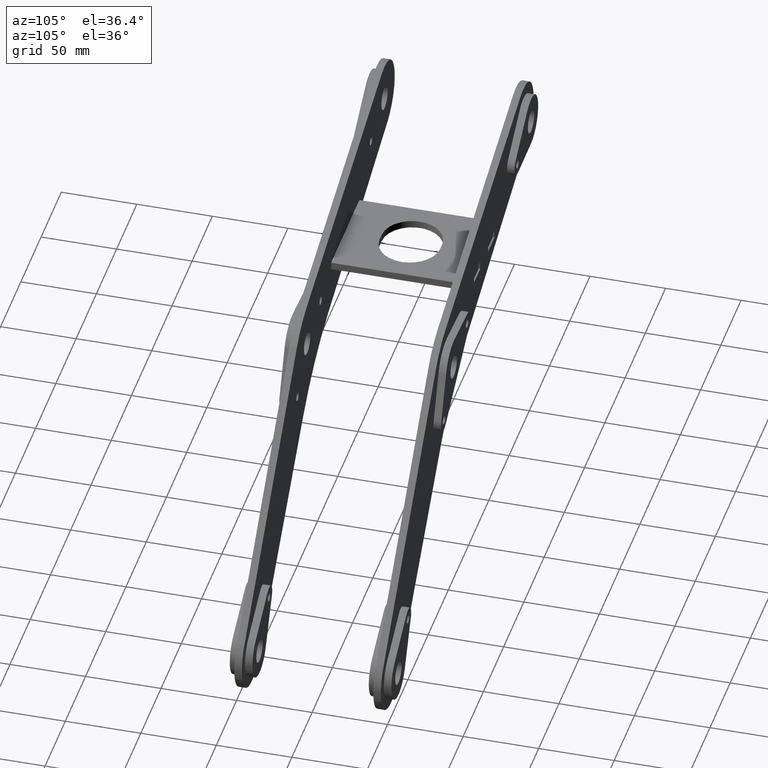
[diagram: clean part render]
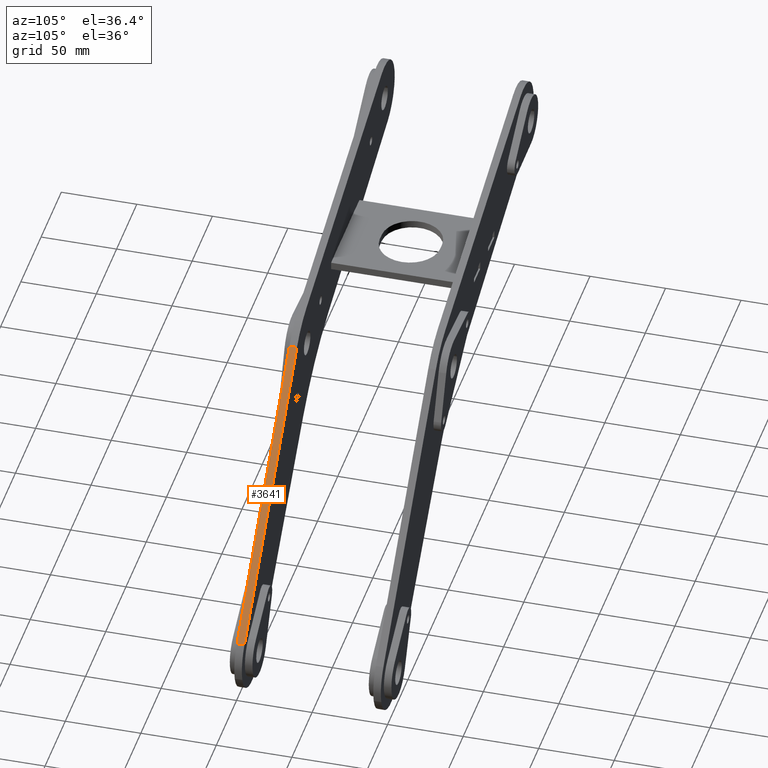
[diagram: same view with one face highlighted and labeled with its STEP entity id]
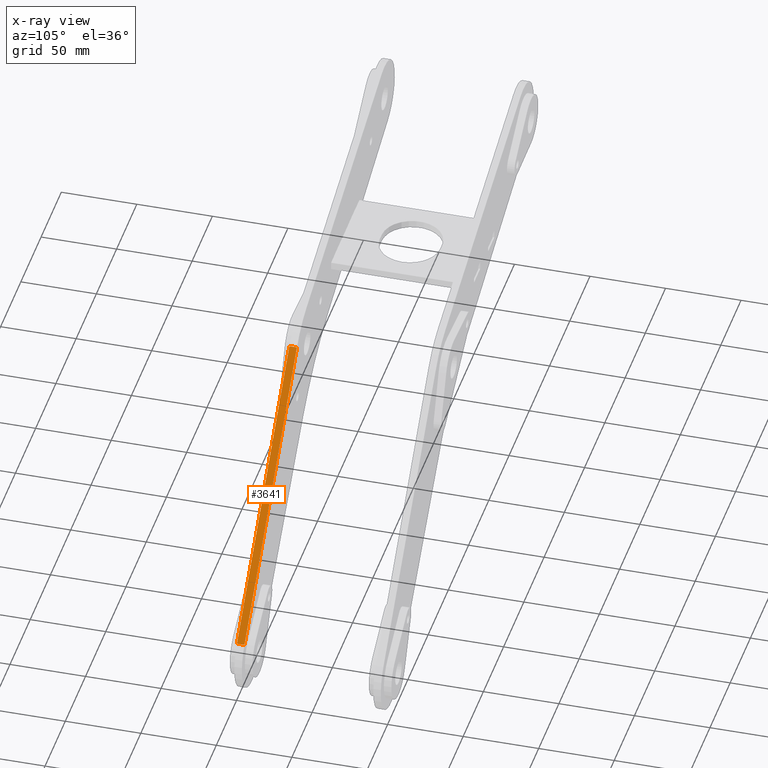
[diagram: x-ray of the same camera — body ghosted, the highlighted face saturated]
A machine part, auxiliary view. The second image highlights one B-rep face of the part: STEP entity #3641.
The next image is the same camera in x-ray: the body ghosted, the highlighted face saturated — about 0% of this face is hidden behind the body in this view.
In plain terms, the highlighted planar face has unit normal (0.7431, -0, 0.6691).
Its self-contained STEP definition (entity closure, byte-faithful):
#9 = CARTESIAN_POINT ( 'NONE',  ( 186.0810326296388553, -78.57081748244732466, 0.000000000000000000 ) ) ;
#61 = EDGE_CURVE ( 'NONE', #3784, #1043, #201, .T. ) ;
#138 = FACE_OUTER_BOUND ( 'NONE', #3619, .T. ) ;
#159 = PLANE ( 'NONE',  #1986 ) ;
#191 = CARTESIAN_POINT ( 'NONE',  ( 19.96048074662445160, 21.24448015517938160, 0.000000000000000000 ) ) ;
#201 = LINE ( 'NONE', #1117, #2864 ) ;
#235 = CARTESIAN_POINT ( 'NONE',  ( 186.0810326296388553, -78.57081748244732466, -5.000000000000000000 ) ) ;
#440 = LINE ( 'NONE', #2565, #694 ) ;
#484 = DIRECTION ( 'NONE',  ( 0.000000000000000000, 0.000000000000000000, 1.000000000000000000 ) ) ;
#514 = EDGE_CURVE ( 'NONE', #2745, #3263, #2265, .T. ) ;
#661 = DIRECTION ( 'NONE',  ( -0.8571673007021152202, 0.5150380749100493816, 0.000000000000000000 ) ) ;
#694 = VECTOR ( 'NONE', #1904, 1000.000000000000114 ) ;
#777 = ORIENTED_EDGE ( 'NONE', *, *, #61, .T. ) ;
#789 = DIRECTION ( 'NONE',  ( -0.8571673007021152202, 0.5150380749100493816, 0.000000000000000000 ) ) ;
#1043 = VERTEX_POINT ( 'NONE', #191 ) ;
#1101 = ORIENTED_EDGE ( 'NONE', *, *, #3132, .T. ) ;
#1117 = CARTESIAN_POINT ( 'NONE',  ( 19.96048074662445160, 21.24448015517938160, -5.000000000000000000 ) ) ;
#1293 = VECTOR ( 'NONE', #484, 1000.000000000000000 ) ;
#1384 = DIRECTION ( 'NONE',  ( 0.000000000000000000, 0.000000000000000000, 1.000000000000000000 ) ) ;
#1474 = CARTESIAN_POINT ( 'NONE',  ( 19.96048074662445160, 21.24448015517938160, -5.000000000000000000 ) ) ;
#1598 = EDGE_CURVE ( 'NONE', #3263, #1043, #440, .T. ) ;
#1668 = CARTESIAN_POINT ( 'NONE',  ( 186.0810326296388553, -78.57081748244732466, -5.000000000000000000 ) ) ;
#1682 = ORIENTED_EDGE ( 'NONE', *, *, #1598, .F. ) ;
#1904 = DIRECTION ( 'NONE',  ( -0.8571673007021152202, 0.5150380749100493816, 0.000000000000000000 ) ) ;
#1958 = CARTESIAN_POINT ( 'NONE',  ( 186.0810326296388553, -78.57081748244732466, -5.000000000000000000 ) ) ;
#1986 = AXIS2_PLACEMENT_3D ( 'NONE', #1668, #3122, #789 ) ;
#2265 = LINE ( 'NONE', #1958, #1293 ) ;
#2365 = LINE ( 'NONE', #3301, #3718 ) ;
#2565 = CARTESIAN_POINT ( 'NONE',  ( 186.0810326296388553, -78.57081748244732466, 0.000000000000000000 ) ) ;
#2745 = VERTEX_POINT ( 'NONE', #235 ) ;
#2864 = VECTOR ( 'NONE', #1384, 1000.000000000000000 ) ;
#3122 = DIRECTION ( 'NONE',  ( 0.5150380749100493816, 0.8571673007021152202, -0.000000000000000000 ) ) ;
#3132 = EDGE_CURVE ( 'NONE', #2745, #3784, #2365, .T. ) ;
#3263 = VERTEX_POINT ( 'NONE', #9 ) ;
#3301 = CARTESIAN_POINT ( 'NONE',  ( 186.0810326296388553, -78.57081748244732466, -5.000000000000000000 ) ) ;
#3619 = EDGE_LOOP ( 'NONE', ( #1682, #3680, #1101, #777 ) ) ;
#3641 = ADVANCED_FACE ( 'NONE', ( #138 ), #159, .T. ) ;
#3680 = ORIENTED_EDGE ( 'NONE', *, *, #514, .F. ) ;
#3718 = VECTOR ( 'NONE', #661, 1000.000000000000114 ) ;
#3784 = VERTEX_POINT ( 'NONE', #1474 ) ;